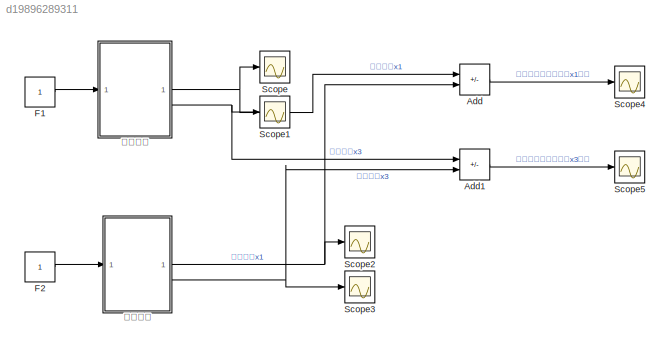
MODEL slx_d19896289311
KIND model
CONFIG AbsTol = auto
CONFIG EnableMultiTasking = off
CONFIG FixedStep = 0.01
CONFIG MaxStep = auto
CONFIG MinStep = auto
CONFIG RelTol = 1e-3
CONFIG SampleTimeConstraint = Unconstrained
CONFIG SolverName = FixedStepAuto
CONFIG StartTime = 0.0
CONFIG StopTime = 10.0
BLOCK [Sum] Add
  IconShape = rectangular
  Inputs = +-
BLOCK [Sum] Add1
  IconShape = rectangular
  Inputs = +-
BLOCK [Constant] F1
BLOCK [Constant] F2
BLOCK [Scope] Scope
  Floating = off
  NumInputPorts = 1
  ScopeSpecificationString = Simulink.scopes.TimeScopeBlockCfg('CurrentConfiguration', extmgr.ConfigurationSet(extmgr.Configuration('Core','General UI',true),extmgr.Configuration('Core','Source UI',true),extmgr.Configuration('Sources','WiredSimulink',true),extmgr.Configuration('Visuals','Time Domain',true,'SerializedDisplays',{struct('MinYLimReal','-0.11365','MaxYLimReal','1.02289','YLabelReal','','MinYLimMag','0.00000','MaxY...<+1357ch>
BLOCK [Scope] Scope1
  Floating = off
  NumInputPorts = 1
  ScopeSpecificationString = Simulink.scopes.TimeScopeBlockCfg('CurrentConfiguration', extmgr.ConfigurationSet(extmgr.Configuration('Core','General UI',true),extmgr.Configuration('Core','Source UI',true),extmgr.Configuration('Sources','WiredSimulink',true,'DataLoggingVariableName','ScopeData1'),extmgr.Configuration('Visuals','Time Domain',true,'SerializedDisplays',{struct('MinYLimReal','-0.00046','MaxYLimReal','0.00417','YLab...<+1395ch>
BLOCK [Scope] Scope2
  Floating = off
  NumInputPorts = 1
  ScopeSpecificationString = Simulink.scopes.TimeScopeBlockCfg('CurrentConfiguration', extmgr.ConfigurationSet(extmgr.Configuration('Core','General UI',true),extmgr.Configuration('Core','Source UI',true),extmgr.Configuration('Sources','WiredSimulink',true,'DataLoggingVariableName','ScopeData2'),extmgr.Configuration('Visuals','Time Domain',true,'SerializedDisplays',{struct('MinYLimReal','-0.11365','MaxYLimReal','1.02289','YLab...<+1421ch>
BLOCK [Scope] Scope3
  Floating = off
  NumInputPorts = 1
  ScopeSpecificationString = Simulink.scopes.TimeScopeBlockCfg('CurrentConfiguration', extmgr.ConfigurationSet(extmgr.Configuration('Core','General UI',true),extmgr.Configuration('Core','Source UI',true),extmgr.Configuration('Sources','WiredSimulink',true,'DataLoggingVariableName','ScopeData3'),extmgr.Configuration('Visuals','Time Domain',true,'SerializedDisplays',{struct('MinYLimReal','-0.00046','MaxYLimReal','0.00417','YLab...<+1396ch>
BLOCK [Scope] Scope4
  Floating = off
  NumInputPorts = 1
  ScopeSpecificationString = Simulink.scopes.TimeScopeBlockCfg('CurrentConfiguration', extmgr.ConfigurationSet(extmgr.Configuration('Core','General UI',true),extmgr.Configuration('Core','Source UI',true),extmgr.Configuration('Sources','WiredSimulink',true,'DataLoggingVariableName','ScopeData4'),extmgr.Configuration('Visuals','Time Domain',true,'SerializedDisplays',{struct('MinYLimReal','-0.0000000028','MaxYLimReal','0.0000000...<+1465ch>
BLOCK [Scope] Scope5
  Floating = off
  NumInputPorts = 1
  ScopeSpecificationString = Simulink.scopes.TimeScopeBlockCfg('CurrentConfiguration', extmgr.ConfigurationSet(extmgr.Configuration('Core','General UI',true),extmgr.Configuration('Core','Source UI',true),extmgr.Configuration('Sources','WiredSimulink',true,'DataLoggingVariableName','ScopeData5'),extmgr.Configuration('Visuals','Time Domain',true,'SerializedDisplays',{struct('MinYLimReal','-0.000000029','MaxYLimReal','0.00000002...<+1460ch>
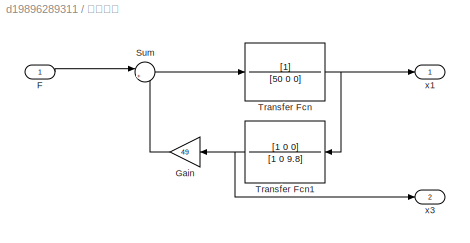
BLOCK [SubSystem] 简易模型
BLOCK [Inport] 简易模型/F
BLOCK [Gain] 简易模型/Gain
  Gain = 49
BLOCK [Sum] 简易模型/Sum
  Inputs = |+-
BLOCK [TransferFcn] 简易模型/Transfer Fcn
  Denominator = [50 0 0]
BLOCK [TransferFcn] 简易模型/Transfer Fcn1
  Denominator = [1 0 9.8]
  Numerator = [1 0 0]
BLOCK [Outport] 简易模型/x1
BLOCK [Outport] 简易模型/x3
  Port = 2
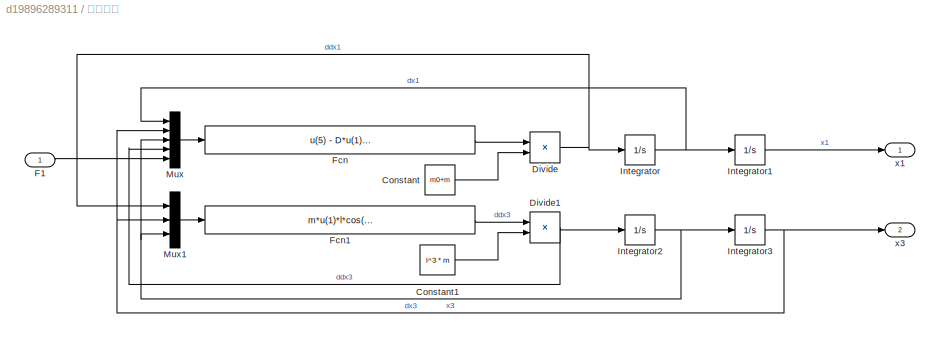
BLOCK [SubSystem] 精确模型
BLOCK [Constant] 精确模型/Constant
  Value = m0+m
BLOCK [Constant] 精确模型/Constant1
  Value = l^3 * m
BLOCK [Product] 精确模型/Divide
  Inputs = */
BLOCK [Product] 精确模型/Divide1
  Inputs = */
BLOCK [Inport] 精确模型/F1
BLOCK [Fcn] 精确模型/Fcn
  Expr = u(5) - D*u(1) + m*l*u(4)*cos(u(2)) - m*l*(u(3)^2)*sin(u(2))
BLOCK [Fcn] 精确模型/Fcn1
  Expr = m*u(1)*l*cos(u(2)) - m*g*l*sin(u(2)) - eta*u(3)
BLOCK [Integrator] 精确模型/Integrator
BLOCK [Integrator] 精确模型/Integrator1
BLOCK [Integrator] 精确模型/Integrator2
BLOCK [Integrator] 精确模型/Integrator3
BLOCK [Mux] 精确模型/Mux
  DisplayOption = bar
  Inputs = 5
BLOCK [Mux] 精确模型/Mux1
  DisplayOption = bar
  Inputs = 3
BLOCK [Outport] 精确模型/x1
BLOCK [Outport] 精确模型/x3
  Port = 2
LINE Add1:1 -> Scope5:1
LINE Add:1 -> Scope4:1
LINE F1:1 -> 精确模型:1
LINE F2:1 -> 简易模型:1
LINE 简易模型/F:1 -> 简易模型/Sum:1
LINE 简易模型/Gain:1 -> 简易模型/Sum:2
LINE 简易模型/Sum:1 -> 简易模型/Transfer Fcn:1
NET 简易模型/Transfer Fcn1:1 -> 简易模型/Gain:1, 简易模型/x3:1
NET 简易模型/Transfer Fcn:1 -> 简易模型/Transfer Fcn1:1, 简易模型/x1:1
NET 简易模型:1 -> Add:2, Scope2:1
NET 简易模型:2 -> Add1:2, Scope3:1
LINE 精确模型/Constant1:1 -> 精确模型/Divide1:2
LINE 精确模型/Constant:1 -> 精确模型/Divide:2
NET 精确模型/Divide1:1 -> 精确模型/Integrator2:1, 精确模型/Mux:4
NET 精确模型/Divide:1 -> 精确模型/Integrator:1, 精确模型/Mux1:1
LINE 精确模型/F1:1 -> 精确模型/Mux:5
LINE 精确模型/Fcn1:1 -> 精确模型/Divide1:1
LINE 精确模型/Fcn:1 -> 精确模型/Divide:1
LINE 精确模型/Integrator1:1 -> 精确模型/x1:1
NET 精确模型/Integrator2:1 -> 精确模型/Integrator3:1, 精确模型/Mux1:3, 精确模型/Mux:3
NET 精确模型/Integrator3:1 -> 精确模型/Mux1:2, 精确模型/Mux:2, 精确模型/x3:1
NET 精确模型/Integrator:1 -> 精确模型/Integrator1:1, 精确模型/Mux:1
LINE 精确模型/Mux1:1 -> 精确模型/Fcn1:1
LINE 精确模型/Mux:1 -> 精确模型/Fcn:1
NET 精确模型:1 -> Add:1, Scope:1
NET 精确模型:2 -> Add1:1, Scope1:1
note: NET lines group one-source signal fan-out (src -> all destinations, sorted); 1:1 wires keep LINE
